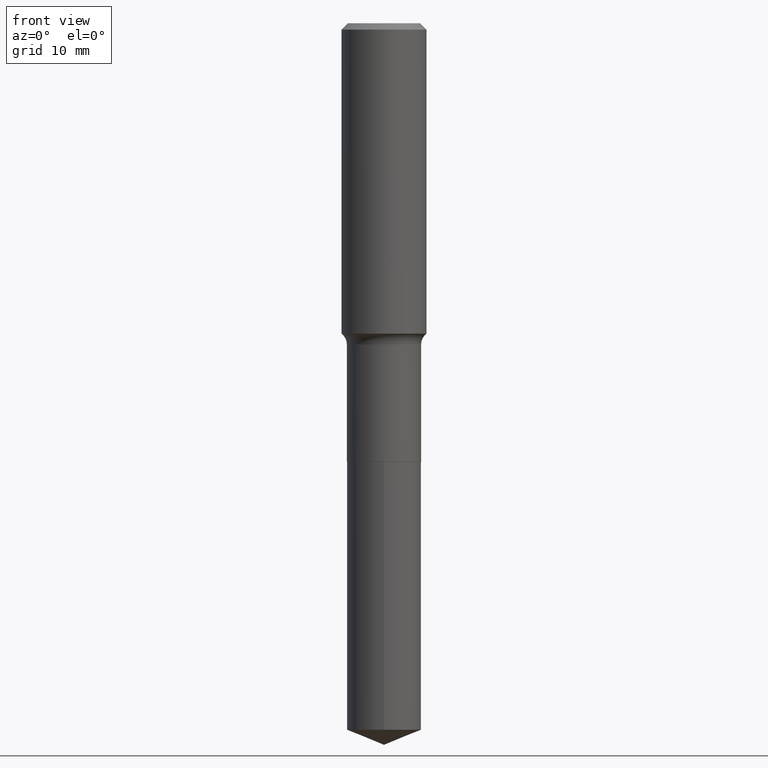
[diagram: clean part render]
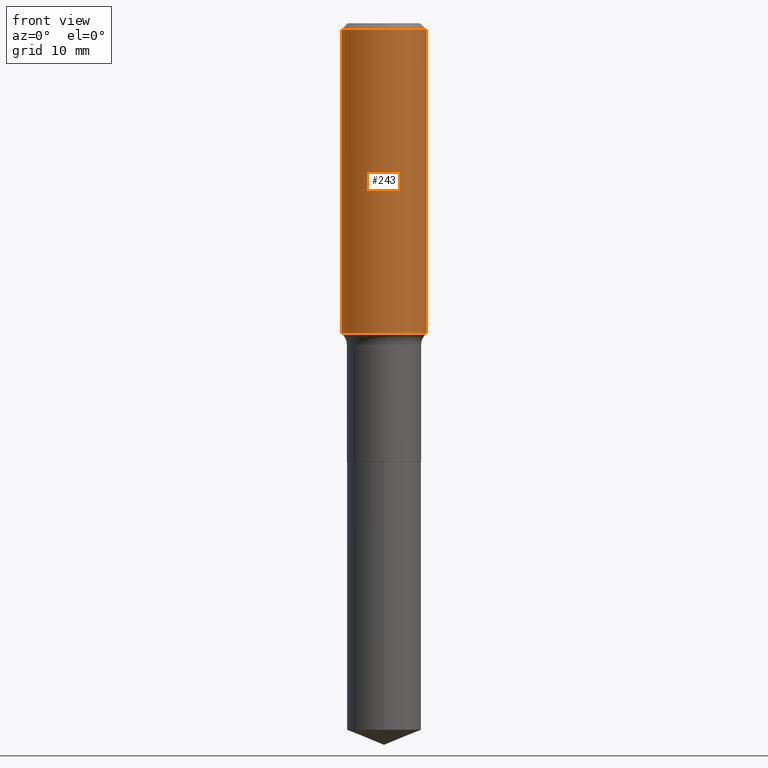
[diagram: same view with one face highlighted and labeled with its STEP entity id]
A machine part, front view. The second image highlights one B-rep face of the part: STEP entity #243.
In plain terms, the highlighted cylindrical surface (partial cylindrical patch) has radius 5.9995 mm, axis along (-0, 0, 1).
Its self-contained STEP definition (entity closure, byte-faithful):
#4 = DIRECTION ( 'NONE',  ( 1.000000000000000000, -6.982962677686266711E-15, 0.000000000000000000 ) ) ;
#20 = DIRECTION ( 'NONE',  ( 1.000000000000000000, -6.982962677686266711E-15, 0.000000000000000000 ) ) ;
#27 = CARTESIAN_POINT ( 'NONE',  ( 0.2362000000000001043, -1.649375784469496920E-15, 1.151752954443000508E-29 ) ) ;
#33 = VECTOR ( 'NONE', #410, 39.37007874015748143 ) ;
#36 = CARTESIAN_POINT ( 'NONE',  ( -0.2361999999999999933, -1.398813793774924506E-15, -0.03543000000000021826 ) ) ;
#50 = EDGE_CURVE ( 'NONE', #227, #414, #98, .T. ) ;
#57 = EDGE_CURVE ( 'NONE', #227, #361, #406, .T. ) ;
#60 = CARTESIAN_POINT ( 'NONE',  ( 0.000000000000000000, 0.000000000000000000, 0.000000000000000000 ) ) ;
#67 = ORIENTED_EDGE ( 'NONE', *, *, #50, .F. ) ;
#83 = ORIENTED_EDGE ( 'NONE', *, *, #208, .F. ) ;
#98 = LINE ( 'NONE', #452, #483 ) ;
#108 = DIRECTION ( 'NONE',  ( -2.445468806185136877E-29, 3.491481338843145188E-15, 1.000000000000000000 ) ) ;
#128 = AXIS2_PLACEMENT_3D ( 'NONE', #60, #217, #292 ) ;
#137 = VERTEX_POINT ( 'NONE', #428 ) ;
#138 = FACE_OUTER_BOUND ( 'NONE', #437, .T. ) ;
#208 = EDGE_CURVE ( 'NONE', #414, #137, #222, .T. ) ;
#217 = DIRECTION ( 'NONE',  ( -2.445468806185136597E-29, 3.491481338843145583E-15, 1.000000000000000000 ) ) ;
#222 = CIRCLE ( 'NONE', #459, 0.2361999999999999933 ) ;
#227 = VERTEX_POINT ( 'NONE', #249 ) ;
#243 = ADVANCED_FACE ( 'NONE', ( #138 ), #449, .T. ) ;
#249 = CARTESIAN_POINT ( 'NONE',  ( -0.2362000000000002153, -4.352226345579992615E-15, -1.727211948795202234 ) ) ;
#292 = DIRECTION ( 'NONE',  ( 1.000000000000000000, -6.982962677686266711E-15, 4.876176775795935793E-29 ) ) ;
#307 = AXIS2_PLACEMENT_3D ( 'NONE', #382, #482, #4 ) ;
#361 = VERTEX_POINT ( 'NONE', #415 ) ;
#367 = LINE ( 'NONE', #27, #33 ) ;
#382 = CARTESIAN_POINT ( 'NONE',  ( 4.223842942448906576E-29, -6.030528287445351375E-15, -1.727211948795202234 ) ) ;
#387 = ORIENTED_EDGE ( 'NONE', *, *, #422, .T. ) ;
#394 = ORIENTED_EDGE ( 'NONE', *, *, #57, .T. ) ;
#406 = CIRCLE ( 'NONE', #307, 0.2362000000000002153 ) ;
#410 = DIRECTION ( 'NONE',  ( -2.445468806185136877E-29, 3.491481338843145188E-15, 1.000000000000000000 ) ) ;
#414 = VERTEX_POINT ( 'NONE', #36 ) ;
#415 = CARTESIAN_POINT ( 'NONE',  ( 0.2362000000000002153, -7.679904071914847901E-15, -1.727211948795202234 ) ) ;
#422 = EDGE_CURVE ( 'NONE', #361, #137, #367, .T. ) ;
#428 = CARTESIAN_POINT ( 'NONE',  ( 0.2361999999999999933, -1.773078968304709514E-15, -0.03543000000000021826 ) ) ;
#430 = CARTESIAN_POINT ( 'NONE',  ( 8.664295980313993487E-31, -1.237031838352134079E-16, -0.03543000000000021826 ) ) ;
#437 = EDGE_LOOP ( 'NONE', ( #67, #394, #387, #83 ) ) ;
#449 = CYLINDRICAL_SURFACE ( 'NONE', #128, 0.2362000000000001043 ) ;
#452 = CARTESIAN_POINT ( 'NONE',  ( -0.2362000000000001043, 1.678301941865357380E-15, -1.161852468318209317E-29 ) ) ;
#459 = AXIS2_PLACEMENT_3D ( 'NONE', #430, #471, #20 ) ;
#471 = DIRECTION ( 'NONE',  ( -2.445468806185136597E-29, 3.491481338843145583E-15, 1.000000000000000000 ) ) ;
#482 = DIRECTION ( 'NONE',  ( -2.445468806185136597E-29, 3.491481338843145583E-15, 1.000000000000000000 ) ) ;
#483 = VECTOR ( 'NONE', #108, 39.37007874015748143 ) ;